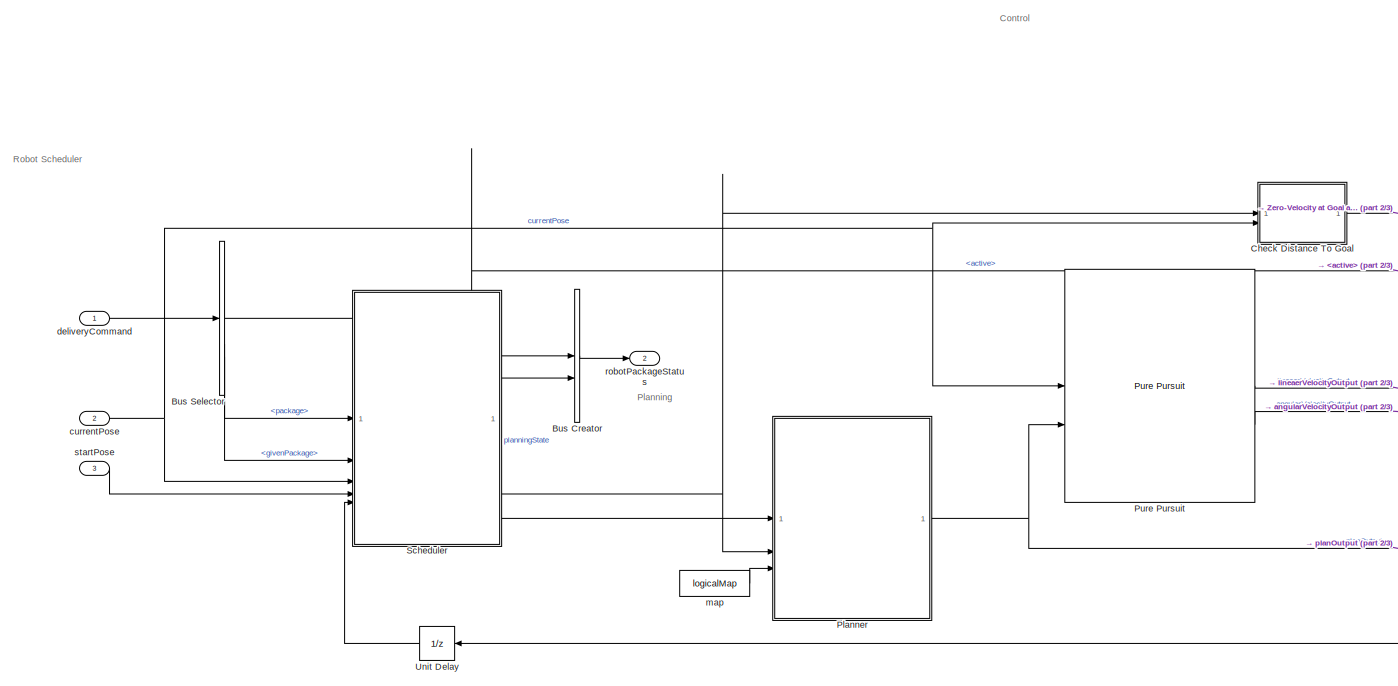
[diagram: root canvas - part 1/3, full width, top band]
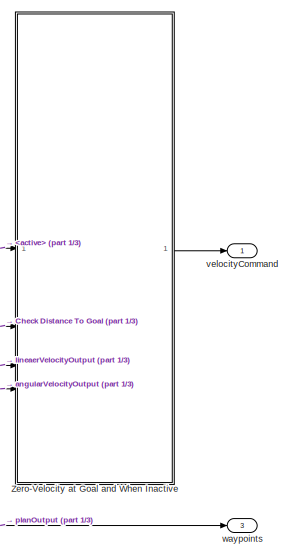
[diagram: root canvas - part 2/3, top right region]
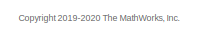
[diagram: root canvas - part 3/3, bottom center region]
MODEL slx_6822b4a371b0
KIND model
CONFIG AbsTol = auto
CONFIG EnableMultiTasking = off
CONFIG FixedStep = 1
CONFIG MaxStep = auto
CONFIG MinStep = auto
CONFIG RelTol = 1e-3
CONFIG SampleTimeConstraint = Unconstrained
CONFIG SolverName = ode1
CONFIG StartTime = 0.0
CONFIG StopTime = 10.0
BLOCK [BusCreator] Bus Creator
  DisplayOption = bar
  InheritFromInputs = off
  Inputs = 2
  NonVirtualBus = on
  OutDataTypeStr = Bus: RobotPackageStatus
BLOCK [BusSelector] Bus Selector
  OutputSignals = active,package,givenPackage
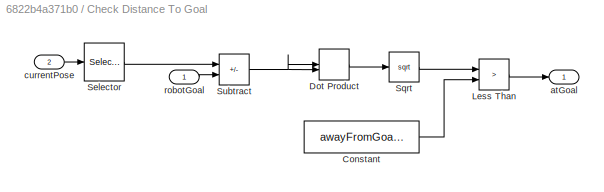
BLOCK [SubSystem] Check Distance To Goal
BLOCK [Constant] Check Distance To Goal/Constant
  Value = awayFromGoalThresh
BLOCK [DotProduct] Check Distance To Goal/Dot Product
  OutDataTypeStr = Inherit: Inherit via internal rule
BLOCK [RelationalOperator] Check Distance To Goal/Less Than
  InputSameDT = off
  Operator = >
  OutDataTypeStr = boolean
  RndMeth = Simplest
BLOCK [Selector] Check Distance To Goal/Selector
  IndexOptions = Index vector (dialog)
  Indices = [1 2]
  InputPortWidth = 3
  OutputSizes = 1
BLOCK [Sqrt] Check Distance To Goal/Sqrt
BLOCK [Sum] Check Distance To Goal/Subtract
  IconShape = rectangular
  Inputs = +-
BLOCK [Outport] Check Distance To Goal/atGoal
BLOCK [Inport] Check Distance To Goal/currentPose
  Port = 2
BLOCK [Inport] Check Distance To Goal/robotGoal
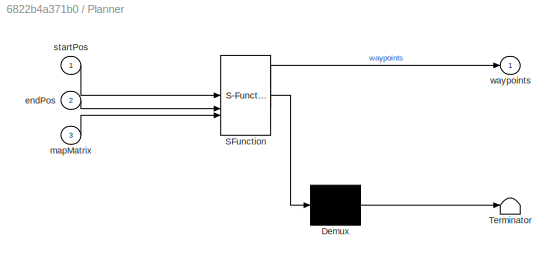
BLOCK [SubSystem] Planner
  ErrorFcn = Stateflow.Translate.translate
  PermitHierarchicalResolution = ExplicitOnly
  SFBlockType = MATLAB Function
  TreatAsAtomicUnit = on
BLOCK [Demux] Planner/ Demux 
  Outputs = 1
BLOCK [S-Function] Planner/ SFunction 
  EnableBusSupport = on
  FunctionName = sf_sfun
  PortCounts = [3 2]
  SFcnIsStateOwnerBlock = off
  SFunctionDeploymentMode = off
  Tag = Stateflow S-Function 1
BLOCK [Terminator] Planner/ Terminator 
BLOCK [Inport] Planner/endPos
  Port = 2
BLOCK [Inport] Planner/mapMatrix
  Port = 3
BLOCK [Inport] Planner/startPos
BLOCK [Outport] Planner/waypoints
  VectorParamsAs1DForOutWhenUnconnected = off
BLOCK [Reference] Pure Pursuit  REF=robotalgslib/Pure Pursuit
  SourceBlock = robotalgslib/Pure Pursuit
  SourceType = nav.slalgs.internal.PurePursuit
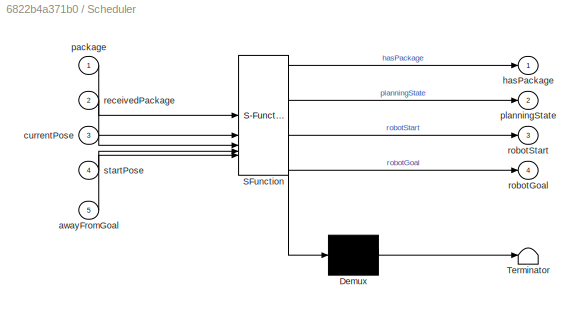
BLOCK [SubSystem] Scheduler
  ErrorFcn = Stateflow.Translate.translate
  PermitHierarchicalResolution = ExplicitOnly
  Priority = 2
  SFBlockType = Chart
BLOCK [Demux] Scheduler/ Demux 
  Outputs = 1
BLOCK [S-Function] Scheduler/ SFunction 
  EnableBusSupport = on
  FunctionName = sf_sfun
  Parameters = loadingStation,unloadingStations
  PortCounts = [5 5]
  SFcnIsStateOwnerBlock = off
  SFunctionDeploymentMode = off
  Tag = Stateflow S-Function 2
BLOCK [Terminator] Scheduler/ Terminator 
BLOCK [Inport] Scheduler/awayFromGoal
  Port = 5
BLOCK [Inport] Scheduler/currentPose
  Port = 3
BLOCK [Outport] Scheduler/hasPackage
  VectorParamsAs1DForOutWhenUnconnected = off
BLOCK [Inport] Scheduler/package
BLOCK [Outport] Scheduler/planningState
  Port = 2
  VectorParamsAs1DForOutWhenUnconnected = off
BLOCK [Inport] Scheduler/receivedPackage
  Port = 2
BLOCK [Outport] Scheduler/robotGoal
  Port = 4
  VectorParamsAs1DForOutWhenUnconnected = off
BLOCK [Outport] Scheduler/robotStart
  Port = 3
  VectorParamsAs1DForOutWhenUnconnected = off
BLOCK [Inport] Scheduler/startPose
  Port = 4
BLOCK [UnitDelay] Unit Delay
  HasFrameUpgradeWarning = on
  NameLocation = top
  SampleTime = -1
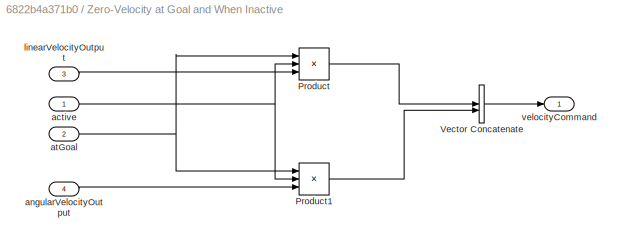
BLOCK [SubSystem] Zero-Velocity at Goal and When Inactive
BLOCK [Product] Zero-Velocity at Goal and When Inactive/Product
  Inputs = 3
BLOCK [Product] Zero-Velocity at Goal and When Inactive/Product1
  Inputs = 3
BLOCK [Concatenate] Zero-Velocity at Goal and When Inactive/Vector Concatenate
BLOCK [Inport] Zero-Velocity at Goal and When Inactive/active
BLOCK [Inport] Zero-Velocity at Goal and When Inactive/angularVelocityOutput
  Port = 4
BLOCK [Inport] Zero-Velocity at Goal and When Inactive/atGoal
  Port = 2
BLOCK [Inport] Zero-Velocity at Goal and When Inactive/linearVelocityOutput
  Port = 3
BLOCK [Outport] Zero-Velocity at Goal and When Inactive/velocityCommand
BLOCK [Inport] currentPose
  Port = 2
  PortDimensions = [3, 1]
BLOCK [Inport] deliveryCommand
  BusOutputAsStruct = on
  OutDataTypeStr = Bus: RobotDeliverCommand
BLOCK [Constant] map
  Value = logicalMap
BLOCK [Outport] robotPackageStatus
  BusOutputAsStruct = on
  OutDataTypeStr = Bus: RobotPackageStatus
  Port = 2
BLOCK [Inport] startPose
  Port = 3
BLOCK [Outport] velocityCommand
BLOCK [Outport] waypoints
  Port = 3
ANNOTATION (root): Control
ANNOTATION (root): <copyright redacted>
ANNOTATION (root): Planning
ANNOTATION (root): Robot Scheduler
LINE Bus Creator:1 -> robotPackageStatus:1
LINE Bus Selector:1 -> Zero-Velocity at Goal and When Inactive:1
LINE Bus Selector:2 -> Scheduler:1
LINE Bus Selector:3 -> Scheduler:2
LINE Check Distance To Goal/Constant:1 -> Check Distance To Goal/Less Than:2
LINE Check Distance To Goal/Dot Product:1 -> Check Distance To Goal/Sqrt:1
LINE Check Distance To Goal/Less Than:1 -> Check Distance To Goal/atGoal:1
LINE Check Distance To Goal/Selector:1 -> Check Distance To Goal/Subtract:1
LINE Check Distance To Goal/Sqrt:1 -> Check Distance To Goal/Less Than:1
NET Check Distance To Goal/Subtract:1 -> Check Distance To Goal/Dot Product:1, Check Distance To Goal/Dot Product:2
LINE Check Distance To Goal/currentPose:1 -> Check Distance To Goal/Selector:1
LINE Check Distance To Goal/robotGoal:1 -> Check Distance To Goal/Subtract:2
NET Check Distance To Goal:1 -> Unit Delay:1, Zero-Velocity at Goal and When Inactive:2
NET Planner:1 -> Pure Pursuit:2, waypoints:1
LINE Pure Pursuit:1 -> Zero-Velocity at Goal and When Inactive:3
LINE Pure Pursuit:2 -> Zero-Velocity at Goal and When Inactive:4
LINE Scheduler:1 -> Bus Creator:1
LINE Scheduler:2 -> Bus Creator:2
LINE Scheduler:3 -> Planner:1
NET Scheduler:4 -> Check Distance To Goal:1, Planner:2
LINE Unit Delay:1 -> Scheduler:5
LINE Zero-Velocity at Goal and When Inactive/Product1:1 -> Zero-Velocity at Goal and When Inactive/Vector Concatenate:2
LINE Zero-Velocity at Goal and When Inactive/Product:1 -> Zero-Velocity at Goal and When Inactive/Vector Concatenate:1
LINE Zero-Velocity at Goal and When Inactive/Vector Concatenate:1 -> Zero-Velocity at Goal and When Inactive/velocityCommand:1
NET Zero-Velocity at Goal and When Inactive/active:1 -> Zero-Velocity at Goal and When Inactive/Product1:2, Zero-Velocity at Goal and When Inactive/Product:2
LINE Zero-Velocity at Goal and When Inactive/angularVelocityOutput:1 -> Zero-Velocity at Goal and When Inactive/Product1:3
NET Zero-Velocity at Goal and When Inactive/atGoal:1 -> Zero-Velocity at Goal and When Inactive/Product1:1, Zero-Velocity at Goal and When Inactive/Product:1
LINE Zero-Velocity at Goal and When Inactive/linearVelocityOutput:1 -> Zero-Velocity at Goal and When Inactive/Product:3
LINE Zero-Velocity at Goal and When Inactive:1 -> velocityCommand:1
NET currentPose:1 -> Check Distance To Goal:2, Pure Pursuit:1, Scheduler:3
LINE deliveryCommand:1 -> Bus Selector:1
LINE map:1 -> Planner:3
LINE startPose:1 -> Scheduler:4
note: NET lines group one-source signal fan-out (src -> all destinations, sorted); 1:1 wires keep LINE
CHART Planner states=1 transitions=1
  STATE_LABEL 'eML_blk_kernel()'
  STATE_LABEL 'SCRIPT:\nfunction waypoints = planning(startPos, endPos, mapMatrix)\n\npersistent waypointsInternal\npersistent prevStartPos\npersistent prevEndPos\n\n% Set constant parameters\nmaxNumNodes = 100;\n\n% Initialize persistent variables that are used downstream\nif isempty(prevStartPos)\n    prevStartPos = startPos;\nend\n\nif isempty(prevEndPos)\n    prevEndPos = endPos;\nend\n\nisNewPath = (~isequal(prevStartPos, sta...<+1019ch>'
CHART Scheduler states=3 transitions=8
  STATE_LABEL "GoToUnloadingStation\nentry:\nrobotGoal = unloadingStations(package, :)';\nrobotStart = currentPose(1:2)';"
  STATE_LABEL "GoToLoadingStation\nentry:\nrobotGoal = loadingStation';\nrobotStart = currentPose(1:2)';"
  STATE_LABEL 'StationHalt\nentry, during:\n'
CHART  states=0 transitions=0
CHART  states=0 transitions=0
